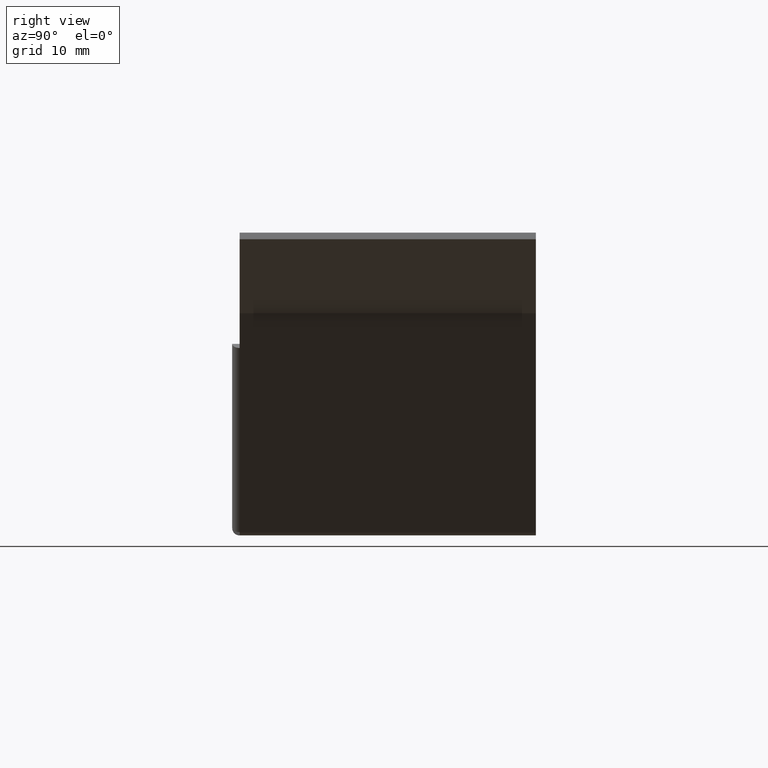
[diagram: clean part render]
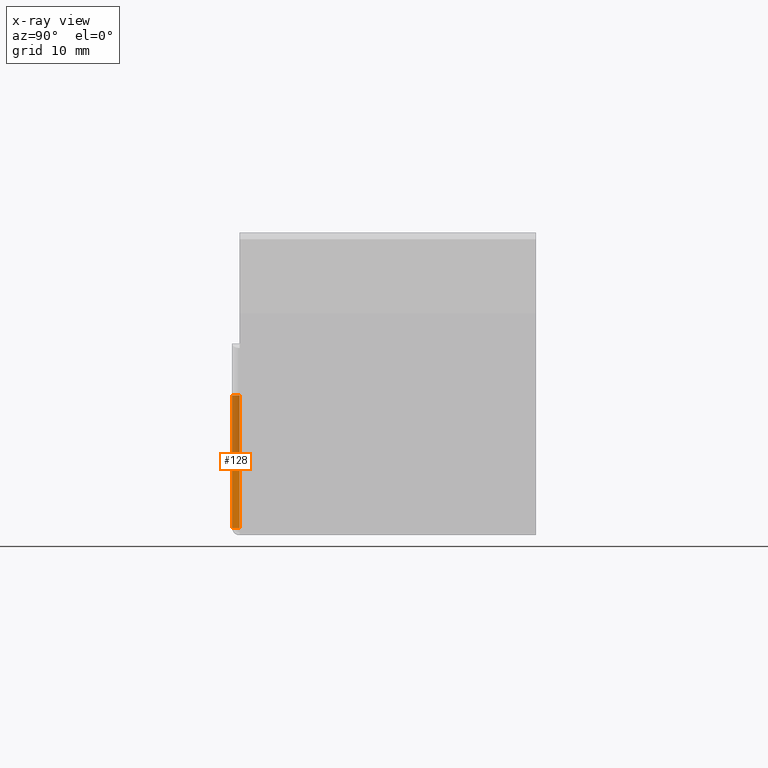
[diagram: x-ray — body ghosted, one internal face saturated and labeled with its STEP entity id]
A machine part, right view, then the same camera in x-ray: the body is ghosted and one INTERNAL B-rep face — a face not visible from any outside direction — is saturated and labeled: STEP entity #128.
In plain terms, the highlighted planar face has unit normal (0.8817, 0, 0.4719).
Its self-contained STEP definition (entity closure, byte-faithful):
#128 = ADVANCED_FACE( '', ( #257 ), #258, .F. );
#257 = FACE_OUTER_BOUND( '', #403, .T. );
#258 = PLANE( '', #404 );
#403 = EDGE_LOOP( '', ( #703, #704, #705, #706 ) );
#404 = AXIS2_PLACEMENT_3D( '', #707, #708, #709 );
#703 = ORIENTED_EDGE( '', *, *, #823, .F. );
#704 = ORIENTED_EDGE( '', *, *, #866, .T. );
#705 = ORIENTED_EDGE( '', *, *, #777, .T. );
#706 = ORIENTED_EDGE( '', *, *, #800, .F. );
#707 = CARTESIAN_POINT( '', ( 54.5262504810253, -40.0000000000000, -27.1405473038267 ) );
#708 = DIRECTION( '', ( 0.881674598767617, 0.000000000000000, 0.471857925532634 ) );
#709 = DIRECTION( '', ( 0.471857925532634, 0.000000000000000, -0.881674598767617 ) );
#777 = EDGE_CURVE( '', #910, #908, #911, .T. );
#800 = EDGE_CURVE( '', #924, #908, #948, .T. );
#823 = EDGE_CURVE( '', #978, #924, #980, .T. );
#866 = EDGE_CURVE( '', #978, #910, #1032, .T. );
#908 = VERTEX_POINT( '', #1081 );
#910 = VERTEX_POINT( '', #1084 );
#911 = LINE( '', #1085, #1086 );
#924 = VERTEX_POINT( '', #1104 );
#948 = B_SPLINE_CURVE_WITH_KNOTS( '', 1, ( #1145, #1146 ), .UNSPECIFIED., .F., .F., ( 2, 2 ), ( 0.000000000000000, 1.00000000000000 ), .UNSPECIFIED. );
#978 = VERTEX_POINT( '', #1197 );
#980 = LINE( '', #1200, #1201 );
#1032 = LINE( '', #1281, #1282 );
#1081 = CARTESIAN_POINT( '', ( 39.4643396070667, -40.0000000000000, 1.00289059960753 ) );
#1084 = CARTESIAN_POINT( '', ( 29.8884053293024, -40.0000000000000, 18.8956874677382 ) );
#1085 = CARTESIAN_POINT( '', ( 54.5262504810253, -40.0000000000000, -27.1405473038267 ) );
#1086 = VECTOR( '', #1322, 1000.00000000000 );
#1104 = CARTESIAN_POINT( '', ( 39.4643396070667, -41.0000000000000, 1.00289059960754 ) );
#1145 = CARTESIAN_POINT( '', ( 39.4643396070663, -41.0000000000000, 1.00289059960688 ) );
#1146 = CARTESIAN_POINT( '', ( 39.4643396070663, -40.0000000000000, 1.00289059960688 ) );
#1197 = CARTESIAN_POINT( '', ( 29.8884053293024, -41.0000000000000, 18.8956874677382 ) );
#1200 = CARTESIAN_POINT( '', ( 54.5262504810253, -41.0000000000000, -27.1405473038267 ) );
#1201 = VECTOR( '', #1367, 1000.00000000000 );
#1281 = CARTESIAN_POINT( '', ( 29.8884053293024, -40.0000000000000, 18.8956874677382 ) );
#1282 = VECTOR( '', #1399, 1000.00000000000 );
#1322 = DIRECTION( '', ( 0.471857925532634, 0.000000000000000, -0.881674598767617 ) );
#1367 = DIRECTION( '', ( 0.471857925532634, 0.000000000000000, -0.881674598767617 ) );
#1399 = DIRECTION( '', ( 0.000000000000000, 1.00000000000000, 0.000000000000000 ) );